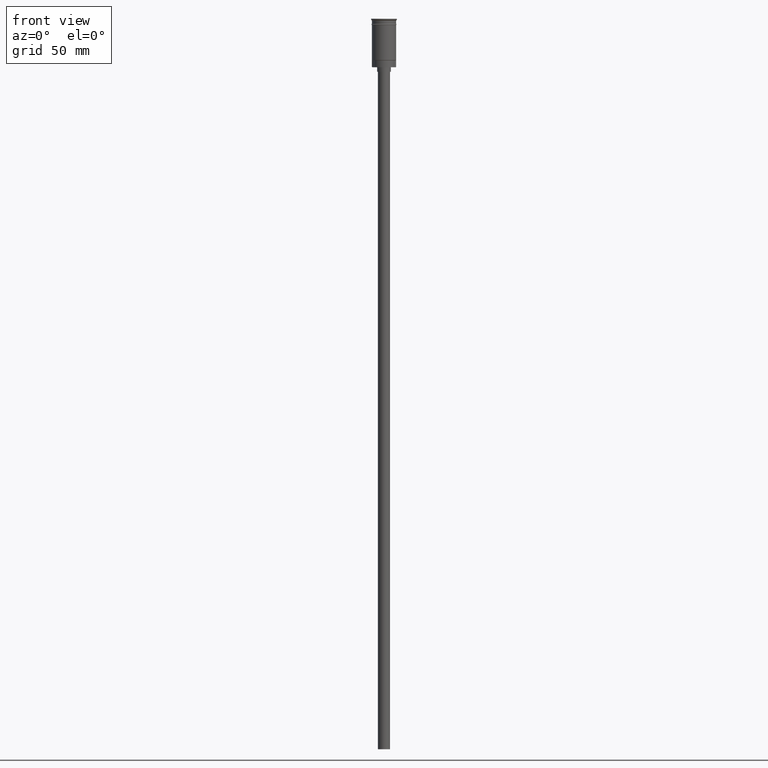
[diagram: clean part render]
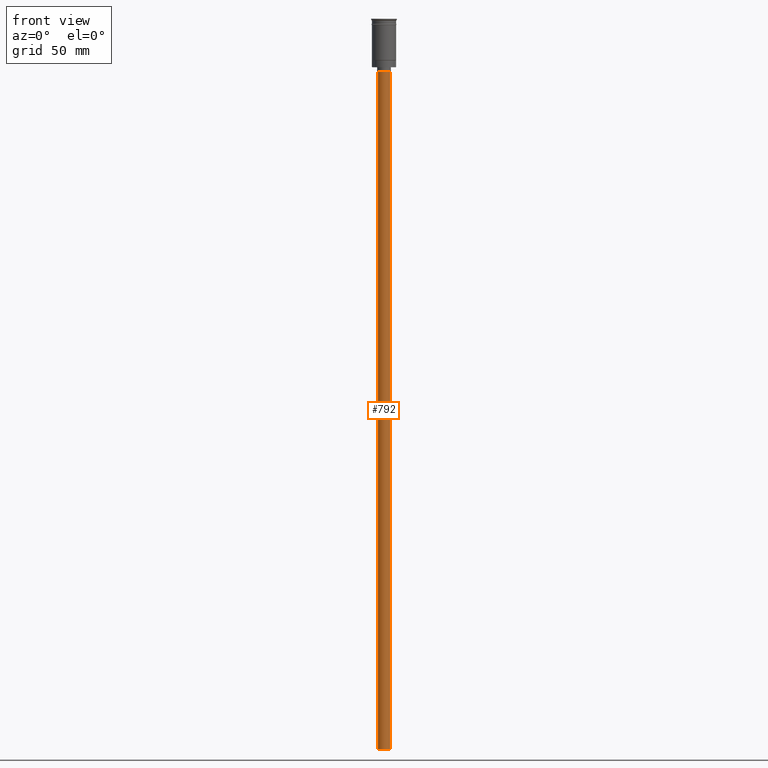
[diagram: same view with one face highlighted and labeled with its STEP entity id]
A machine part, front view. The second image highlights one B-rep face of the part: STEP entity #792.
In plain terms, the highlighted cylindrical surface (edge-blend (fillet) strip) has radius 4 mm, axis along (-0, -0, 1).
Its self-contained STEP definition (entity closure, byte-faithful):
#11 = FACE_OUTER_BOUND ( 'NONE', #1303, .T. ) ;
#18 = CARTESIAN_POINT ( 'NONE',  ( 0.000000000000000000, 0.000000000000000000, -482.0000000000000000 ) ) ;
#29 = VECTOR ( 'NONE', #1583, 1000.000000000000000 ) ;
#58 = ORIENTED_EDGE ( 'NONE', *, *, #934, .T. ) ;
#252 = CYLINDRICAL_SURFACE ( 'NONE', #316, 4.000000000000000000 ) ;
#316 = AXIS2_PLACEMENT_3D ( 'NONE', #18, #1131, #1004 ) ;
#317 = CARTESIAN_POINT ( 'NONE',  ( 0.000000000000000000, 0.000000000000000000, -35.00000000000000000 ) ) ;
#327 = DIRECTION ( 'NONE',  ( 0.000000000000000000, 0.000000000000000000, -1.000000000000000000 ) ) ;
#408 = VERTEX_POINT ( 'NONE', #954 ) ;
#462 = CARTESIAN_POINT ( 'NONE',  ( 4.000000000000000000, 0.000000000000000000, -482.0000000000000000 ) ) ;
#482 = DIRECTION ( 'NONE',  ( -1.000000000000000000, 0.000000000000000000, 0.000000000000000000 ) ) ;
#490 = EDGE_CURVE ( 'NONE', #992, #1285, #1475, .T. ) ;
#590 = LINE ( 'NONE', #1318, #29 ) ;
#619 = ORIENTED_EDGE ( 'NONE', *, *, #1603, .F. ) ;
#620 = CARTESIAN_POINT ( 'NONE',  ( 4.000000000000000000, 0.000000000000000000, -482.0000000000000000 ) ) ;
#676 = CIRCLE ( 'NONE', #1429, 4.000000000000000000 ) ;
#728 = ORIENTED_EDGE ( 'NONE', *, *, #1334, .F. ) ;
#736 = CIRCLE ( 'NONE', #1331, 4.000000000000000000 ) ;
#792 = ADVANCED_FACE ( 'NONE', ( #11 ), #252, .T. ) ;
#810 = DIRECTION ( 'NONE',  ( -1.000000000000000000, 0.000000000000000000, 0.000000000000000000 ) ) ;
#846 = DIRECTION ( 'NONE',  ( 0.000000000000000000, 0.000000000000000000, -1.000000000000000000 ) ) ;
#882 = VERTEX_POINT ( 'NONE', #1147 ) ;
#886 = CARTESIAN_POINT ( 'NONE',  ( 0.000000000000000000, 0.000000000000000000, -482.0000000000000000 ) ) ;
#934 = EDGE_CURVE ( 'NONE', #1285, #408, #676, .T. ) ;
#954 = CARTESIAN_POINT ( 'NONE',  ( -4.000000000000000000, 4.898587196589412829E-16, -35.00000000000000000 ) ) ;
#992 = VERTEX_POINT ( 'NONE', #462 ) ;
#1004 = DIRECTION ( 'NONE',  ( 1.000000000000000000, 0.000000000000000000, 0.000000000000000000 ) ) ;
#1131 = DIRECTION ( 'NONE',  ( -0.000000000000000000, -0.000000000000000000, 1.000000000000000000 ) ) ;
#1147 = CARTESIAN_POINT ( 'NONE',  ( -4.000000000000000000, 4.898587196589412829E-16, -482.0000000000000000 ) ) ;
#1156 = ORIENTED_EDGE ( 'NONE', *, *, #490, .T. ) ;
#1188 = CARTESIAN_POINT ( 'NONE',  ( 4.000000000000000000, 0.000000000000000000, -35.00000000000000000 ) ) ;
#1268 = VECTOR ( 'NONE', #1483, 1000.000000000000000 ) ;
#1285 = VERTEX_POINT ( 'NONE', #1188 ) ;
#1303 = EDGE_LOOP ( 'NONE', ( #728, #619, #1156, #58 ) ) ;
#1318 = CARTESIAN_POINT ( 'NONE',  ( -4.000000000000000000, 4.898587196589412829E-16, -482.0000000000000000 ) ) ;
#1331 = AXIS2_PLACEMENT_3D ( 'NONE', #886, #846, #482 ) ;
#1334 = EDGE_CURVE ( 'NONE', #882, #408, #590, .T. ) ;
#1429 = AXIS2_PLACEMENT_3D ( 'NONE', #317, #327, #810 ) ;
#1475 = LINE ( 'NONE', #620, #1268 ) ;
#1483 = DIRECTION ( 'NONE',  ( -0.000000000000000000, -0.000000000000000000, 1.000000000000000000 ) ) ;
#1583 = DIRECTION ( 'NONE',  ( -0.000000000000000000, -0.000000000000000000, 1.000000000000000000 ) ) ;
#1603 = EDGE_CURVE ( 'NONE', #992, #882, #736, .T. ) ;